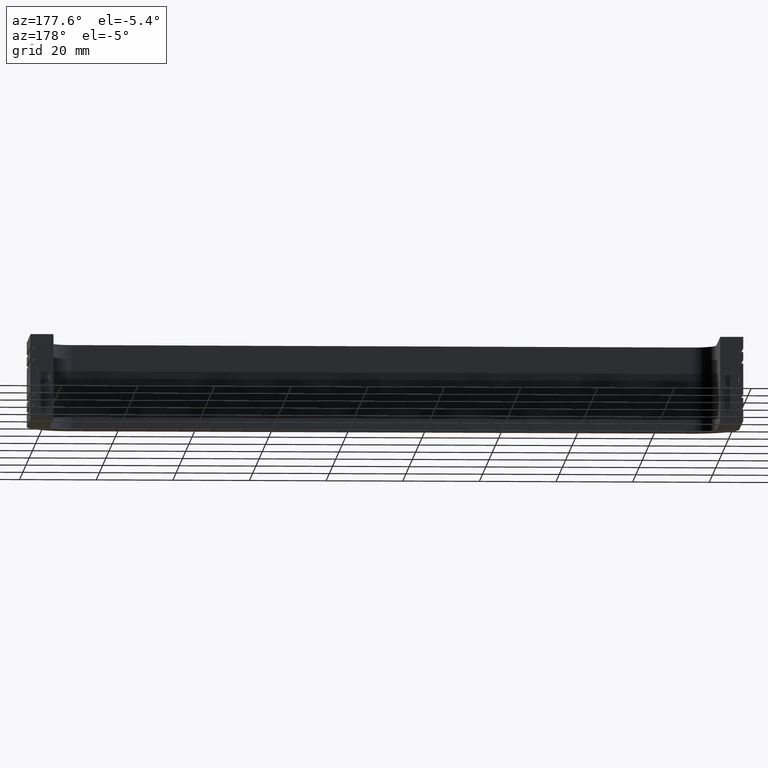
[diagram: clean part render]
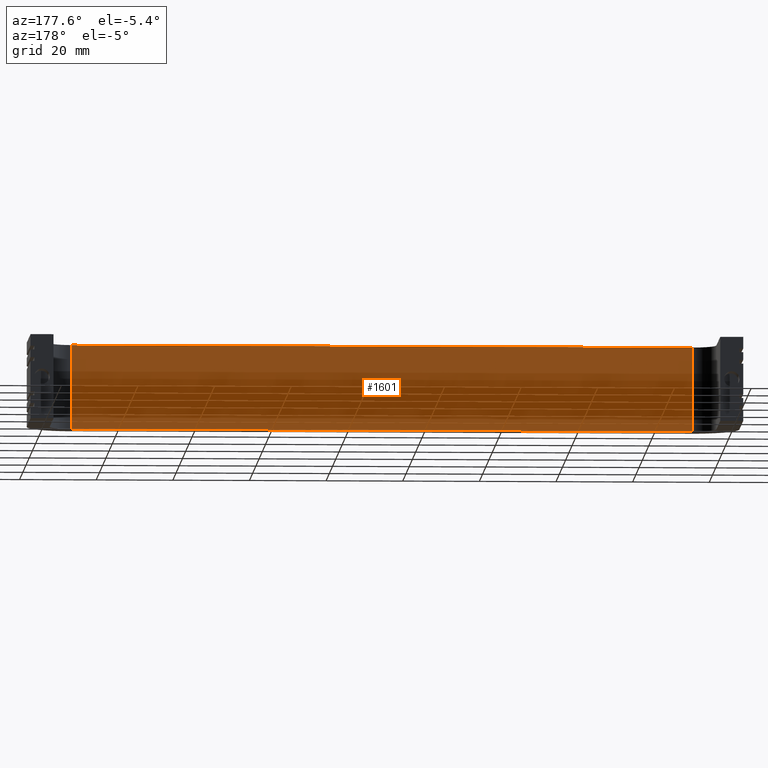
[diagram: same view with one face highlighted and labeled with its STEP entity id]
A machine part, auxiliary view. The second image highlights one B-rep face of the part: STEP entity #1601.
In plain terms, the highlighted face is a freeform B-spline surface patch.
Its self-contained STEP definition (entity closure, byte-faithful):
#1283=CARTESIAN_POINT('',(170.999900000000000,-30.0,-11.0));
#1284=VERTEX_POINT('',#1283);
#1298=CARTESIAN_POINT('',(170.999900000000000,-30.0,11.0));
#1299=VERTEX_POINT('',#1298);
#1300=CARTESIAN_POINT('',(170.999900000000000,-30.0,11.0));
#1301=CARTESIAN_POINT('',(170.999900000000000,-30.0,-11.0));
#1302=QUASI_UNIFORM_CURVE('',1,(#1300,#1301),.UNSPECIFIED.,.F.,.U.);
#1303=EDGE_CURVE('',#1299,#1284,#1302,.T.);
#1574=CARTESIAN_POINT('',(0.908105887764684,-30.0,12.098899957359730));
#1575=CARTESIAN_POINT('',(0.908105887764684,-30.0,-12.098900547445711));
#1576=CARTESIAN_POINT('',(179.091786870275510,-30.0,12.098899957359730));
#1577=CARTESIAN_POINT('',(179.091786870275510,-30.0,-12.098900547445711));
#1578=B_SPLINE_SURFACE_WITH_KNOTS('',1,1,((#1574,#1576),(#1575,#1577)),.UNSPECIFIED.,.F.,.F.,.U.,(2,2),(2,2),(0.0,24.197800504805450),(0.0,178.183680982510790),.UNSPECIFIED.);
#1579=CARTESIAN_POINT('',(9.0,-30.0,-11.0));
#1580=VERTEX_POINT('',#1579);
#1581=CARTESIAN_POINT('',(9.0,-30.0,-11.0));
#1582=CARTESIAN_POINT('',(170.999900000000000,-30.0,-11.0));
#1583=QUASI_UNIFORM_CURVE('',1,(#1581,#1582),.UNSPECIFIED.,.F.,.U.);
#1584=EDGE_CURVE('',#1580,#1284,#1583,.T.);
#1585=ORIENTED_EDGE('',*,*,#1584,.F.);
#1586=CARTESIAN_POINT('',(9.0,-30.0,11.0));
#1587=VERTEX_POINT('',#1586);
#1588=CARTESIAN_POINT('',(9.0,-30.0,11.0));
#1589=CARTESIAN_POINT('',(9.0,-30.0,-11.0));
#1590=QUASI_UNIFORM_CURVE('',1,(#1588,#1589),.UNSPECIFIED.,.F.,.U.);
#1591=EDGE_CURVE('',#1587,#1580,#1590,.T.);
#1592=ORIENTED_EDGE('',*,*,#1591,.F.);
#1593=CARTESIAN_POINT('',(9.0,-30.0,11.0));
#1594=CARTESIAN_POINT('',(170.999900000000000,-30.0,11.0));
#1595=QUASI_UNIFORM_CURVE('',1,(#1593,#1594),.UNSPECIFIED.,.F.,.U.);
#1596=EDGE_CURVE('',#1587,#1299,#1595,.T.);
#1597=ORIENTED_EDGE('',*,*,#1596,.T.);
#1598=ORIENTED_EDGE('',*,*,#1303,.T.);
#1599=EDGE_LOOP('',(#1585,#1592,#1597,#1598));
#1600=FACE_OUTER_BOUND('',#1599,.T.);
#1601=ADVANCED_FACE('',(#1600),#1578,.F.);